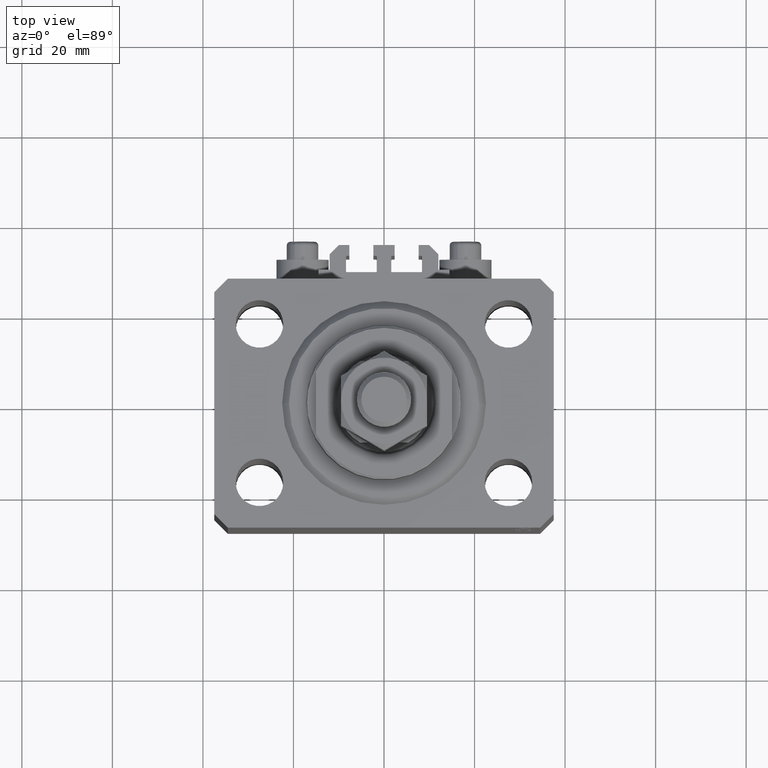
[diagram: clean part render]
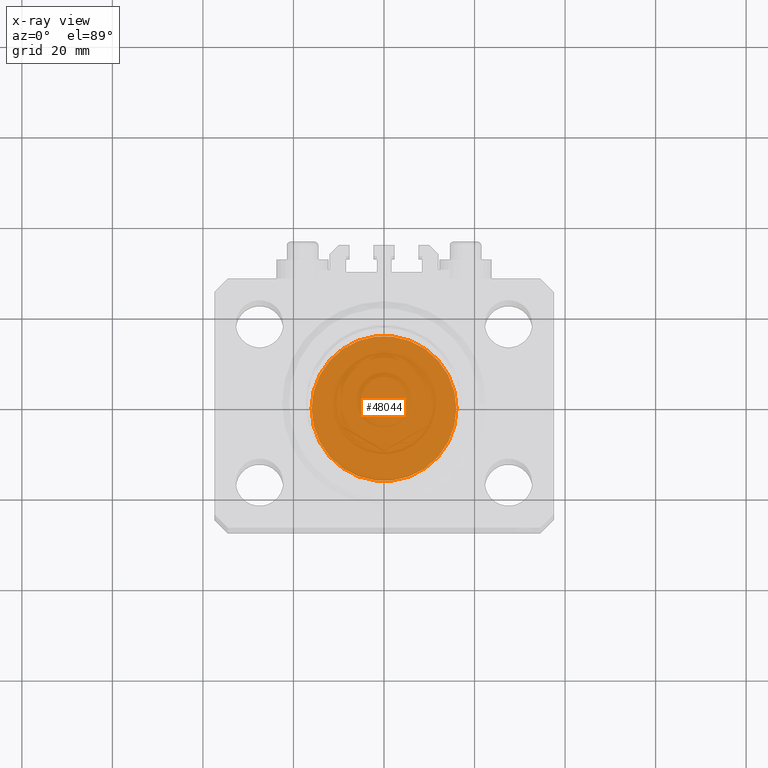
[diagram: x-ray — body ghosted, one internal face saturated and labeled with its STEP entity id]
A machine part, top view, then the same camera in x-ray: the body is ghosted and one INTERNAL B-rep face — a face not visible from any outside direction — is saturated and labeled: STEP entity #48044.
In plain terms, the highlighted planar face has unit normal (0, 0, 1).
Its self-contained STEP definition (entity closure, byte-faithful):
#3234 = VERTEX_POINT ( 'NONE', #33895 ) ;
#4262 = AXIS2_PLACEMENT_3D ( 'NONE', #7120, #37383, #26227 ) ;
#7120 = CARTESIAN_POINT ( 'NONE',  ( 0.000000000000000000, 0.000000000000000000, 0.000000000000000000 ) ) ;
#9032 = ORIENTED_EDGE ( 'NONE', *, *, #19983, .F. ) ;
#9101 = VERTEX_POINT ( 'NONE', #14613 ) ;
#12291 = AXIS2_PLACEMENT_3D ( 'NONE', #37856, #29941, #48749 ) ;
#14555 = FACE_OUTER_BOUND ( 'NONE', #44497, .T. ) ;
#14613 = CARTESIAN_POINT ( 'NONE',  ( -16.00000000000000000, 0.000000000000000000, 0.000000000000000000 ) ) ;
#19983 = EDGE_CURVE ( 'NONE', #3234, #9101, #32005, .T. ) ;
#25788 = CIRCLE ( 'NONE', #12291, 16.00000000000000000 ) ;
#26227 = DIRECTION ( 'NONE',  ( 1.000000000000000000, 0.000000000000000000, 0.000000000000000000 ) ) ;
#28577 = EDGE_CURVE ( 'NONE', #9101, #3234, #25788, .T. ) ;
#29941 = DIRECTION ( 'NONE',  ( 0.000000000000000000, 0.000000000000000000, 1.000000000000000000 ) ) ;
#30448 = DIRECTION ( 'NONE',  ( 1.000000000000000000, 0.000000000000000000, -0.000000000000000000 ) ) ;
#32005 = CIRCLE ( 'NONE', #4262, 16.00000000000000000 ) ;
#33895 = CARTESIAN_POINT ( 'NONE',  ( 16.00000000000000000, 1.959434878635765131E-15, 0.000000000000000000 ) ) ;
#34432 = ORIENTED_EDGE ( 'NONE', *, *, #28577, .F. ) ;
#37383 = DIRECTION ( 'NONE',  ( 0.000000000000000000, 0.000000000000000000, 1.000000000000000000 ) ) ;
#37856 = CARTESIAN_POINT ( 'NONE',  ( 0.000000000000000000, 0.000000000000000000, 0.000000000000000000 ) ) ;
#37883 = DIRECTION ( 'NONE',  ( 0.000000000000000000, 0.000000000000000000, 1.000000000000000000 ) ) ;
#41848 = PLANE ( 'NONE',  #45616 ) ;
#44497 = EDGE_LOOP ( 'NONE', ( #34432, #9032 ) ) ;
#45616 = AXIS2_PLACEMENT_3D ( 'NONE', #48525, #37883, #30448 ) ;
#48044 = ADVANCED_FACE ( 'NONE', ( #14555 ), #41848, .F. ) ;
#48525 = CARTESIAN_POINT ( 'NONE',  ( 0.000000000000000000, 0.000000000000000000, 0.000000000000000000 ) ) ;
#48749 = DIRECTION ( 'NONE',  ( 1.000000000000000000, 0.000000000000000000, 0.000000000000000000 ) ) ;